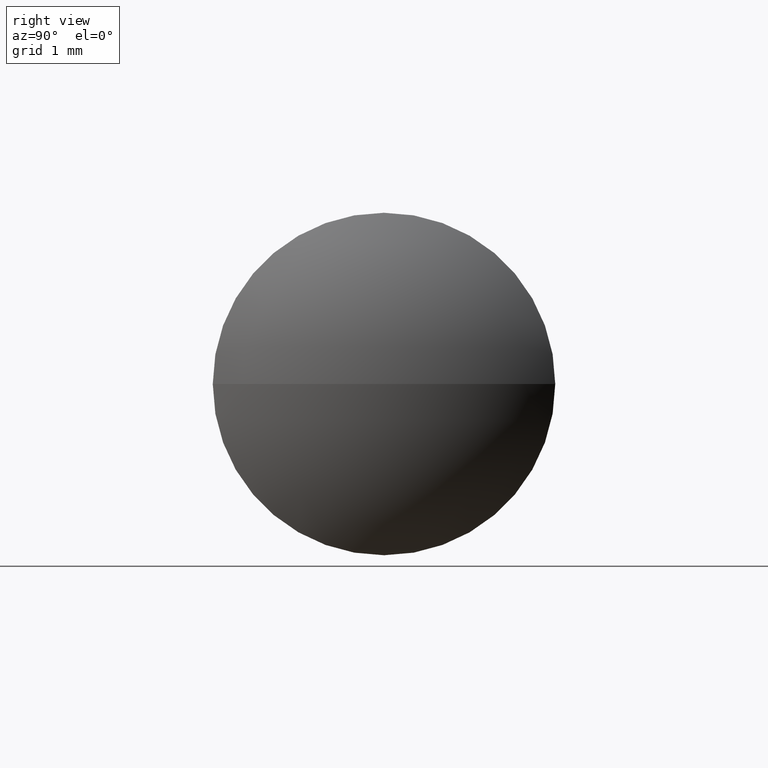
[diagram: clean part render]
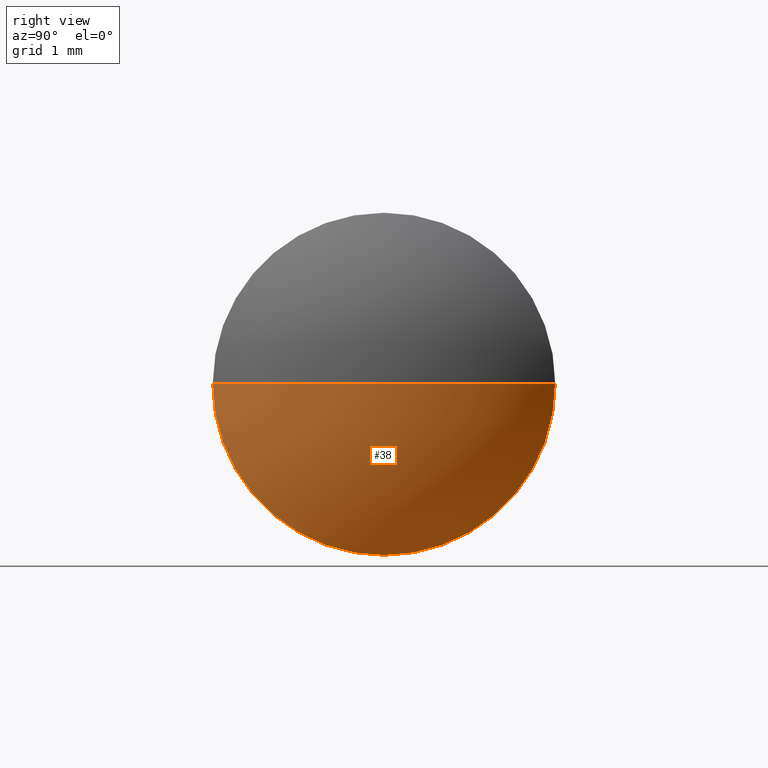
[diagram: same view with one face highlighted and labeled with its STEP entity id]
A machine part, right view. The second image highlights one B-rep face of the part: STEP entity #38.
In plain terms, the highlighted spherical surface has radius 4 mm.
Its self-contained STEP definition (entity closure, byte-faithful):
#1 = DIRECTION ( 'NONE',  ( 0.0000000000000000000, 0.0000000000000000000, 1.000000000000000000 ) ) ;
#3 = AXIS2_PLACEMENT_3D ( 'NONE', #55, #289, #288 ) ;
#5 = VERTEX_POINT ( 'NONE', #229 ) ;
#10 = VERTEX_POINT ( 'NONE', #256 ) ;
#13 = CARTESIAN_POINT ( 'NONE',  ( 3.122904181920509900, 2.499493842869675600, 0.0000000000000000000 ) ) ;
#17 = SPHERICAL_SURFACE ( 'NONE', #145, 4.000000000000003600 ) ;
#38 = ADVANCED_FACE ( 'NONE', ( #39 ), #17, .T. ) ;
#39 = FACE_OUTER_BOUND ( 'NONE', #343, .T. ) ;
#48 = AXIS2_PLACEMENT_3D ( 'NONE', #58, #291, #102 ) ;
#55 = CARTESIAN_POINT ( 'NONE',  ( 0.0000000000000000000, 0.0000000000000000000, 0.0000000000000000000 ) ) ;
#58 = CARTESIAN_POINT ( 'NONE',  ( 3.122904181920509900, 0.0000000000000000000, 0.0000000000000000000 ) ) ;
#75 = DIRECTION ( 'NONE',  ( 0.0000000000000000000, 1.000000000000000000, 0.0000000000000000000 ) ) ;
#102 = DIRECTION ( 'NONE',  ( 0.0000000000000000000, 0.0000000000000000000, 1.000000000000000000 ) ) ;
#103 = DIRECTION ( 'NONE',  ( 0.0000000000000000000, 1.224646799147353200E-016, -1.000000000000000000 ) ) ;
#111 = ORIENTED_EDGE ( 'NONE', *, *, #290, .F. ) ;
#115 = ORIENTED_EDGE ( 'NONE', *, *, #136, .T. ) ;
#119 = EDGE_CURVE ( 'NONE', #335, #5, #296, .T. ) ;
#121 = ORIENTED_EDGE ( 'NONE', *, *, #169, .F. ) ;
#136 = EDGE_CURVE ( 'NONE', #10, #344, #183, .T. ) ;
#139 = DIRECTION ( 'NONE',  ( -0.0000000000000000000, 0.0000000000000000000, -1.000000000000000000 ) ) ;
#142 = CIRCLE ( 'NONE', #48, 2.499493842869675600 ) ;
#144 = DIRECTION ( 'NONE',  ( -1.000000000000000000, -0.0000000000000000000, -0.0000000000000000000 ) ) ;
#145 = AXIS2_PLACEMENT_3D ( 'NONE', #280, #139, #75 ) ;
#159 = CIRCLE ( 'NONE', #3, 4.000000000000003600 ) ;
#163 = AXIS2_PLACEMENT_3D ( 'NONE', #318, #144, #1 ) ;
#169 = EDGE_CURVE ( 'NONE', #5, #344, #142, .T. ) ;
#183 = CIRCLE ( 'NONE', #336, 4.000000000000003600 ) ;
#200 = CARTESIAN_POINT ( 'NONE',  ( 0.0000000000000000000, 0.0000000000000000000, 0.0000000000000000000 ) ) ;
#204 = DIRECTION ( 'NONE',  ( 0.0000000000000000000, 1.000000000000000000, 1.224646799147353500E-016 ) ) ;
#229 = CARTESIAN_POINT ( 'NONE',  ( 3.122904181920509900, 3.060997134158865800E-016, -2.499493842869676000 ) ) ;
#256 = CARTESIAN_POINT ( 'NONE',  ( 4.000000000000003600, 2.449293598294708900E-016, 0.0000000000000000000 ) ) ;
#280 = CARTESIAN_POINT ( 'NONE',  ( 0.0000000000000000000, 0.0000000000000000000, 0.0000000000000000000 ) ) ;
#288 = DIRECTION ( 'NONE',  ( 1.000000000000000000, 0.0000000000000000000, 0.0000000000000000000 ) ) ;
#289 = DIRECTION ( 'NONE',  ( -0.0000000000000000000, 0.0000000000000000000, 1.000000000000000000 ) ) ;
#290 = EDGE_CURVE ( 'NONE', #10, #335, #159, .T. ) ;
#291 = DIRECTION ( 'NONE',  ( -1.000000000000000000, -0.0000000000000000000, -0.0000000000000000000 ) ) ;
#295 = CARTESIAN_POINT ( 'NONE',  ( 3.122904181920509900, -2.499493842869675600, -3.060997134158865800E-016 ) ) ;
#296 = CIRCLE ( 'NONE', #163, 2.499493842869675600 ) ;
#318 = CARTESIAN_POINT ( 'NONE',  ( 3.122904181920509900, 0.0000000000000000000, 0.0000000000000000000 ) ) ;
#325 = ORIENTED_EDGE ( 'NONE', *, *, #119, .F. ) ;
#335 = VERTEX_POINT ( 'NONE', #13 ) ;
#336 = AXIS2_PLACEMENT_3D ( 'NONE', #200, #103, #204 ) ;
#343 = EDGE_LOOP ( 'NONE', ( #111, #115, #121, #325 ) ) ;
#344 = VERTEX_POINT ( 'NONE', #295 ) ;